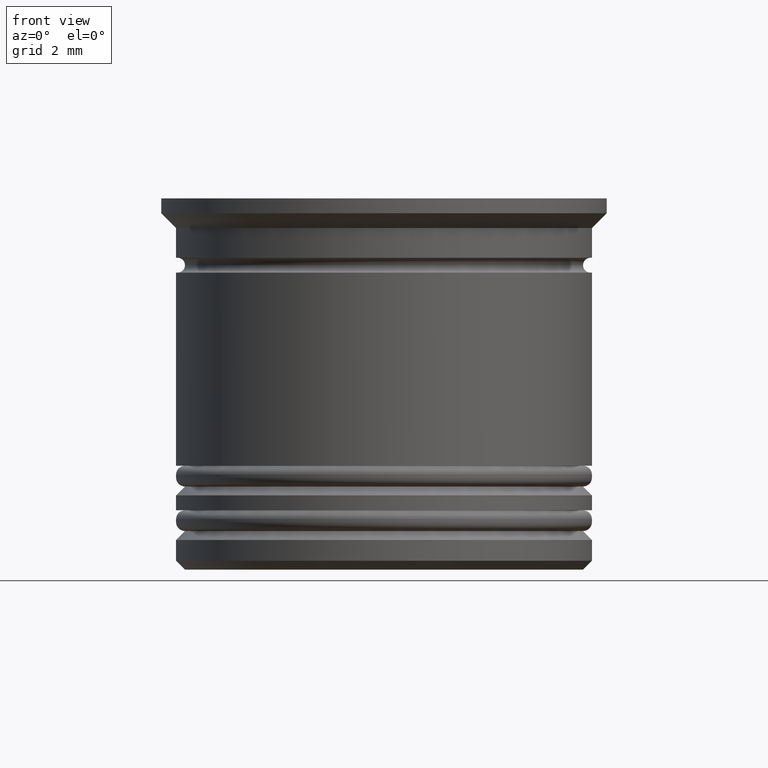
[diagram: clean part render]
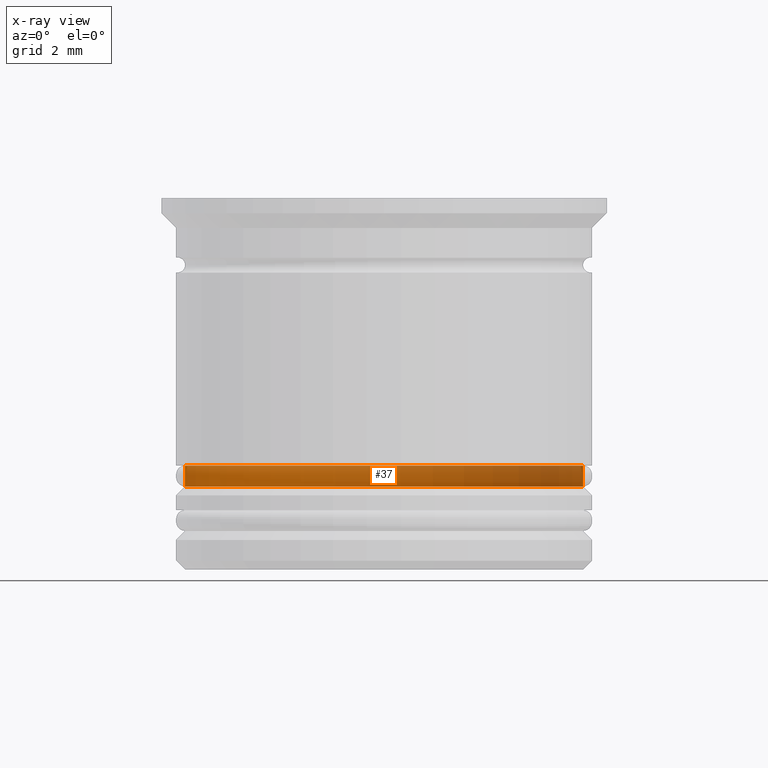
[diagram: x-ray — body ghosted, one internal face saturated and labeled with its STEP entity id]
A machine part, front view, then the same camera in x-ray: the body is ghosted and one INTERNAL B-rep face — a face not visible from any outside direction — is saturated and labeled: STEP entity #37.
In plain terms, the highlighted cylindrical surface (partial cylindrical patch) has radius 6.7 mm, axis along (-0, -0, 1).
Its self-contained STEP definition (entity closure, byte-faithful):
#17 = CIRCLE ( 'NONE', #1884, 6.700000000000001066 ) ;
#29 = CARTESIAN_POINT ( 'NONE',  ( -6.700000000000001066, 8.205133554287267548E-16, -9.000000000000001776 ) ) ;
#31 = DIRECTION ( 'NONE',  ( -0.000000000000000000, -0.000000000000000000, 1.000000000000000000 ) ) ;
#37 = ADVANCED_FACE ( 'NONE', ( #119 ), #536, .T. ) ;
#47 = EDGE_CURVE ( 'NONE', #286, #212, #472, .T. ) ;
#83 = VECTOR ( 'NONE', #31, 1000.000000000000000 ) ;
#105 = DIRECTION ( 'NONE',  ( -0.000000000000000000, -0.000000000000000000, 1.000000000000000000 ) ) ;
#119 = FACE_OUTER_BOUND ( 'NONE', #1245, .T. ) ;
#176 = VECTOR ( 'NONE', #657, 1000.000000000000000 ) ;
#212 = VERTEX_POINT ( 'NONE', #1431 ) ;
#238 = CARTESIAN_POINT ( 'NONE',  ( 0.000000000000000000, 0.000000000000000000, -9.700000000000008171 ) ) ;
#286 = VERTEX_POINT ( 'NONE', #1123 ) ;
#306 = AXIS2_PLACEMENT_3D ( 'NONE', #1309, #1025, #1924 ) ;
#329 = CARTESIAN_POINT ( 'NONE',  ( -6.700000000000001066, 8.205133554287267548E-16, 0.000000000000000000 ) ) ;
#348 = DIRECTION ( 'NONE',  ( 1.000000000000000000, 0.000000000000000000, 0.000000000000000000 ) ) ;
#421 = ORIENTED_EDGE ( 'NONE', *, *, #887, .F. ) ;
#472 = CIRCLE ( 'NONE', #1197, 6.700000000000001066 ) ;
#500 = CARTESIAN_POINT ( 'NONE',  ( 6.700000000000001066, 0.000000000000000000, -9.000000000000001776 ) ) ;
#509 = VERTEX_POINT ( 'NONE', #500 ) ;
#536 = CYLINDRICAL_SURFACE ( 'NONE', #306, 6.700000000000001066 ) ;
#657 = DIRECTION ( 'NONE',  ( -0.000000000000000000, -0.000000000000000000, 1.000000000000000000 ) ) ;
#856 = EDGE_CURVE ( 'NONE', #212, #1319, #1703, .T. ) ;
#887 = EDGE_CURVE ( 'NONE', #509, #1319, #17, .T. ) ;
#895 = ORIENTED_EDGE ( 'NONE', *, *, #1956, .F. ) ;
#945 = LINE ( 'NONE', #1405, #176 ) ;
#1025 = DIRECTION ( 'NONE',  ( -0.000000000000000000, -0.000000000000000000, 1.000000000000000000 ) ) ;
#1102 = DIRECTION ( 'NONE',  ( -0.000000000000000000, -0.000000000000000000, 1.000000000000000000 ) ) ;
#1115 = ORIENTED_EDGE ( 'NONE', *, *, #47, .T. ) ;
#1123 = CARTESIAN_POINT ( 'NONE',  ( 6.700000000000001066, 0.000000000000000000, -9.700000000000008171 ) ) ;
#1170 = DIRECTION ( 'NONE',  ( -1.000000000000000000, 0.000000000000000000, 0.000000000000000000 ) ) ;
#1197 = AXIS2_PLACEMENT_3D ( 'NONE', #238, #105, #1170 ) ;
#1245 = EDGE_LOOP ( 'NONE', ( #1115, #1663, #421, #895 ) ) ;
#1309 = CARTESIAN_POINT ( 'NONE',  ( 0.000000000000000000, 0.000000000000000000, 0.000000000000000000 ) ) ;
#1319 = VERTEX_POINT ( 'NONE', #29 ) ;
#1405 = CARTESIAN_POINT ( 'NONE',  ( 6.700000000000001066, 0.000000000000000000, 0.000000000000000000 ) ) ;
#1431 = CARTESIAN_POINT ( 'NONE',  ( -6.700000000000001066, 8.205133554287267548E-16, -9.700000000000008171 ) ) ;
#1663 = ORIENTED_EDGE ( 'NONE', *, *, #856, .T. ) ;
#1703 = LINE ( 'NONE', #329, #83 ) ;
#1872 = CARTESIAN_POINT ( 'NONE',  ( 0.000000000000000000, 0.000000000000000000, -9.000000000000001776 ) ) ;
#1884 = AXIS2_PLACEMENT_3D ( 'NONE', #1872, #1102, #348 ) ;
#1924 = DIRECTION ( 'NONE',  ( 1.000000000000000000, 0.000000000000000000, 0.000000000000000000 ) ) ;
#1956 = EDGE_CURVE ( 'NONE', #286, #509, #945, .T. ) ;